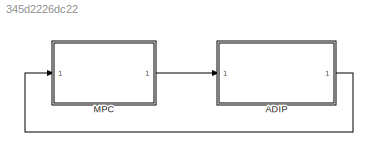
MODEL slx_345d2226dc22
KIND model
CONFIG AbsTol = auto
CONFIG EnableMultiTasking = off
CONFIG FixedStep = auto
CONFIG MaxStep = auto
CONFIG MinStep = auto
CONFIG RelTol = 1e-3
CONFIG SampleTimeConstraint = Unconstrained
CONFIG Solver = VariableStepAuto
CONFIG SolverName = VariableStepAuto
CONFIG StartTime = 0.0
CONFIG StopTime = 17
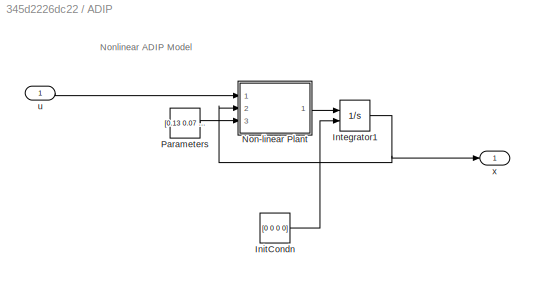
BLOCK [SubSystem] ADIP
  Ports = [1, 1]
  RequestExecContextInheritance = off
BLOCK [Constant] ADIP/InitCondn
  Value = [0 0 0 0]
BLOCK [Integrator] ADIP/Integrator1
  InitialCondition = param.theta0
  InitialConditionSource = external
  Ports = [2, 1]
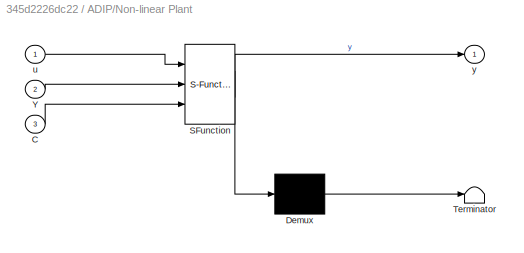
BLOCK [SubSystem] ADIP/Non-linear Plant 
  ErrorFcn = Stateflow.Translate.translate
  PermitHierarchicalResolution = ExplicitOnly
  Ports = [3, 1]
  RequestExecContextInheritance = off
  SFBlockType = MATLAB Function
  TreatAsAtomicUnit = on
BLOCK [Demux] ADIP/Non-linear Plant / Demux 
  Outputs = 1
  Ports = [1, 1]
BLOCK [S-Function] ADIP/Non-linear Plant / SFunction 
  EnableBusSupport = on
  FunctionName = sf_sfun
  PortCounts = [3 2]
  Ports = [3, 2]
  SFcnIsStateOwnerBlock = off
  SFunctionDeploymentMode = off
  Tag = Stateflow S-Function GA_MPC_sim 2
BLOCK [Terminator] ADIP/Non-linear Plant / Terminator 
BLOCK [Inport] ADIP/Non-linear Plant /C
  IconDisplay = Port number
  Port = 3
BLOCK [Inport] ADIP/Non-linear Plant /Y
  IconDisplay = Port number
  Port = 2
BLOCK [Inport] ADIP/Non-linear Plant /u
  IconDisplay = Port number
BLOCK [Outport] ADIP/Non-linear Plant /y
  IconDisplay = Port number
BLOCK [Constant] ADIP/Parameters
  Value = [0.13 0.07 0.04 0.154 0.186 -9.81 0.0003 0.000202 0.00015814 0.000737 0.00289 1.41e-05]
BLOCK [Inport] ADIP/u
  IconDisplay = Port number
BLOCK [Outport] ADIP/x
  IconDisplay = Port number
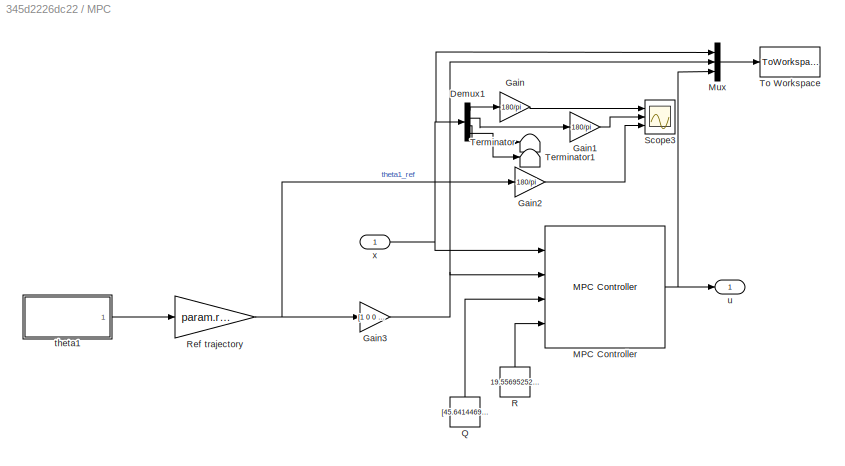
BLOCK [SubSystem] MPC
  Ports = [1, 1]
  RequestExecContextInheritance = off
BLOCK [Demux] MPC/Demux1
  DisplayOption = bar
  Ports = [1, 4]
BLOCK [Gain] MPC/Gain
  Gain = 180/pi
  OutDataTypeStr = Inherit: Inherit via internal rule
  ParamDataTypeStr = Inherit: Inherit via internal rule
  SaturateOnIntegerOverflow = off
BLOCK [Gain] MPC/Gain1
  Gain = 180/pi
  OutDataTypeStr = Inherit: Inherit via internal rule
  ParamDataTypeStr = Inherit: Inherit via internal rule
  SaturateOnIntegerOverflow = off
BLOCK [Gain] MPC/Gain2
  Gain = 180/pi
  OutDataTypeStr = Inherit: Inherit via internal rule
  ParamDataTypeStr = Inherit: Inherit via internal rule
  SaturateOnIntegerOverflow = off
BLOCK [Gain] MPC/Gain3
  Gain = [1 0 0 0]'
  Multiplication = Matrix(K*u)
  OutDataTypeStr = Inherit: Inherit via internal rule
  ParamDataTypeStr = Inherit: Inherit via internal rule
  SaturateOnIntegerOverflow = off
BLOCK [Reference] MPC/MPC Controller  REF=mpclib/MPC Controller  (lib defined in mdl_ae329e0e0455)
  Ports = [4, 1]
  SCDEnableBlockLinearizationSpecification = on
  SourceBlock = mpclib/MPC Controller
  SourceProductBaseCode = Missing
  SourceProductName = MATLAB Runtime - Model Predictive Control Toolbox Addin
  SourceType = MPC
BLOCK [Mux] MPC/Mux
  DisplayOption = bar
  Inputs = 3
  Ports = [3, 1]
BLOCK [Constant] MPC/Q
  Value = [45.6414469366635 78.2425160799863 5.1077156417211 0.875942811492984]
BLOCK [Constant] MPC/R
  Value = 19.5569525277482
BLOCK [Gain] MPC/Ref trajectory
  Gain = param.rmax
  OutDataTypeStr = Inherit: Inherit via internal rule
  ParamDataTypeStr = Inherit: Inherit via internal rule
  SaturateOnIntegerOverflow = off
BLOCK [Scope] MPC/Scope3
  Floating = off
  NumInputPorts = 3
  Ports = [3]
  ScopeSpecificationString = Simulink.scopes.TimeScopeBlockCfg('CurrentConfiguration', extmgr.ConfigurationSet(extmgr.Configuration('Core','General UI',true),extmgr.Configuration('Core','Source UI',true),extmgr.Configuration('Sources','WiredSimulink',true,'DataLoggingVariableName','ScopeData2'),extmgr.Configuration('Visuals','Time Domain',true,'SerializedDisplays',{struct('MinYLimReal','-1.00000','MaxYLimReal','1.00000','YLab...<+1465ch>
BLOCK [Terminator] MPC/Terminator
BLOCK [Terminator] MPC/Terminator1
BLOCK [ToWorkspace] MPC/To Workspace
  FixptAsFi = on
  MaxDataPoints = inf
  Ports = [1]
  SampleTime = -1
  VariableName = data
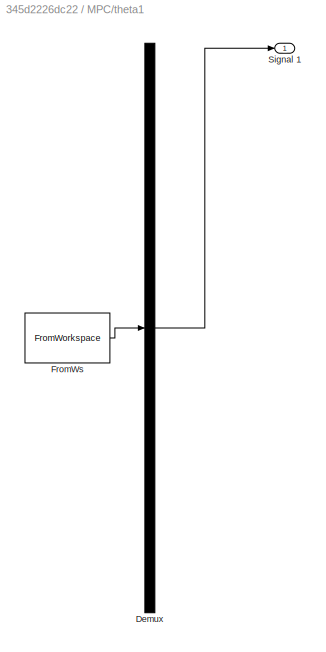
BLOCK [SubSystem] MPC/theta1
  ClipboardFcn = sigbuilder_block('clipboard');
  CloseFcn = sigbuilder_block('close');
  ContinueFcn = sigbuilder_block('continue');
  CopyFcn = sigbuilder_block('copy');
  DeleteFcn = sigbuilder_block('delete');
  LoadFcn = sigbuilder_block('load');
  MaskHideContents = on
  ModelCloseFcn = sigbuilder_block('modelClose');
  NameChangeFcn = sigbuilder_block('namechange');
  OpenFcn = sigbuilder_block('open',[5.5 30 1909 958 ]);
  PauseFcn = sigbuilder_block('pause');
  Ports = [0, 1]
  PreSaveFcn = sigbuilder_block('preSave');
  RequestExecContextInheritance = off
  StartFcn = sigbuilder_block('start');
  StopFcn = sigbuilder_block('stop');
  Tag = STV Subsys
BLOCK [Demux] MPC/theta1/Demux
  Outputs = 1
  Ports = [1, 1]
  Tag = STV Demux
BLOCK [FromWorkspace] MPC/theta1/FromWs
  SampleTime = 0
  Tag = STV FromWs
  VariableName = tuvar
  ZeroCross = on
BLOCK [Outport] MPC/theta1/Signal 1
  IconDisplay = Port number
  Tag = STV Outport
BLOCK [Outport] MPC/u
  IconDisplay = Port number
BLOCK [Inport] MPC/x
  IconDisplay = Port number
ANNOTATION ADIP: Nonlinear ADIP Model
LINE ADIP/InitCondn:1 -> ADIP/Integrator1:2
NET ADIP/Integrator1:1 -> ADIP/Non-linear Plant :2, ADIP/x:1
LINE ADIP/Non-linear Plant :1 -> ADIP/Integrator1:1
LINE ADIP/Parameters:1 -> ADIP/Non-linear Plant :3
LINE ADIP/u:1 -> ADIP/Non-linear Plant :1
LINE ADIP:1 -> MPC:1
LINE MPC/Demux1:1 -> MPC/Gain:1
LINE MPC/Demux1:2 -> MPC/Gain1:1
LINE MPC/Demux1:3 -> MPC/Terminator:1
LINE MPC/Demux1:4 -> MPC/Terminator1:1
LINE MPC/Gain1:1 -> MPC/Scope3:2
LINE MPC/Gain2:1 -> MPC/Scope3:3
NET MPC/Gain3:1 -> MPC/MPC Controller:2, MPC/Mux:2
LINE MPC/Gain:1 -> MPC/Scope3:1
NET MPC/MPC Controller:1 -> MPC/Mux:3, MPC/u:1
LINE MPC/Mux:1 -> MPC/To Workspace:1
LINE MPC/Q:1 -> MPC/MPC Controller:3
LINE MPC/R:1 -> MPC/MPC Controller:4
NET MPC/Ref trajectory:1 -> MPC/Gain2:1, MPC/Gain3:1
LINE MPC/theta1:1 -> MPC/Ref trajectory:1
NET MPC/x:1 -> MPC/Demux1:1, MPC/MPC Controller:1, MPC/Mux:1
LINE MPC:1 -> ADIP:1
note: NET lines group one-source signal fan-out (src -> all destinations, sorted); 1:1 wires keep LINE
CHART ADIP/Non-linear 
Plant
 states=1 transitions=1
  STATE_LABEL 'eML_blk_kernel()'
  STATE_LABEL 'SCRIPT:\nfunction y = fcn(u,Y,C)\nm1=C(1); % Mass of arm\nm2=C(2); % Mass of pendulum\nmh = C(3); % Mass of Hinge\nl1  = C(4); % Length of arm\nl2 = C(5); % Length of pendulum\ng_ = C(6);\nJ_arm = C(7);\nJ_pend = C(8);\nJ_motor = C(9);\nJ_sensor = C(10);\nfv1 = C(11);\nfv2 = C(12);\n\ny1 = Y(1);  % actual theta1          \ny2 = Y(2);  % actual theta2\ny3 = Y(3);  % actual theta1d\ny4 = Y(4);  % actual theta2d\n\ndy1 ...<+1551ch>'
